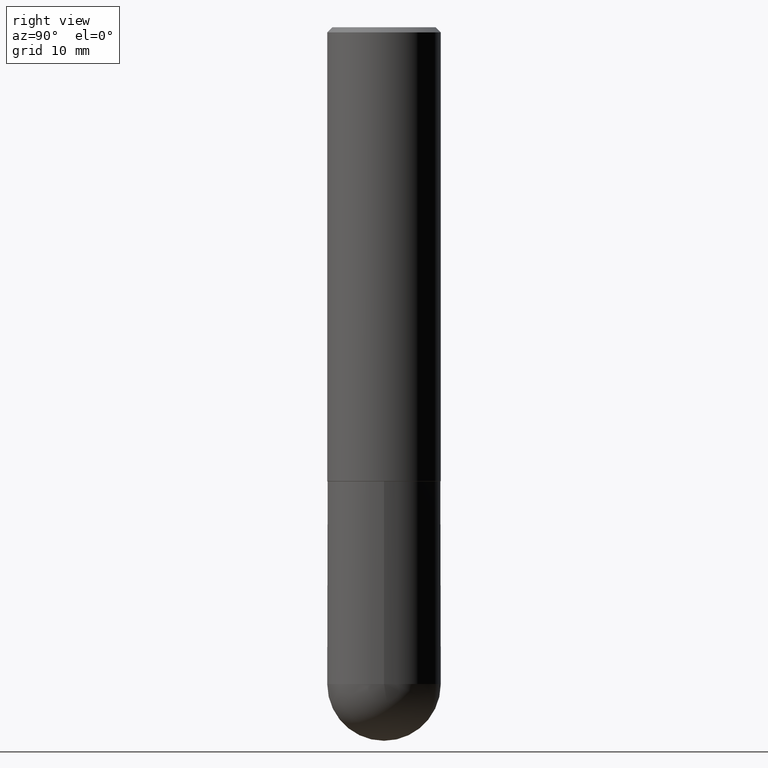
[diagram: clean part render]
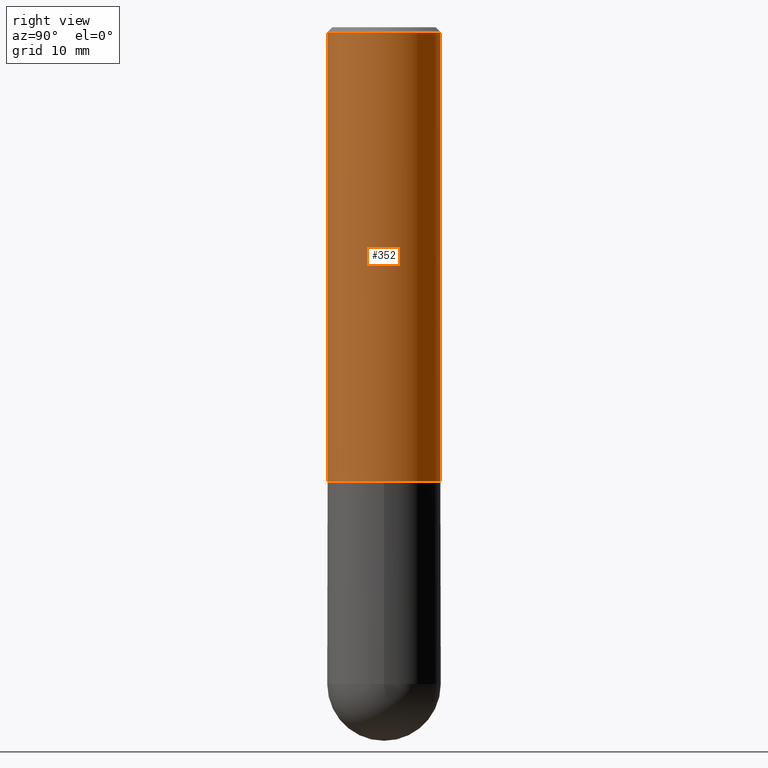
[diagram: same view with one face highlighted and labeled with its STEP entity id]
A machine part, right view. The second image highlights one B-rep face of the part: STEP entity #352.
In plain terms, the highlighted cylindrical surface (partial cylindrical patch) has radius 5.5563 mm, axis along (-0, 0, 1).
Its self-contained STEP definition (entity closure, byte-faithful):
#1 = DIRECTION ( 'NONE',  ( -6.982962677686265922E-15, -1.000000000000000000, 3.492862791899308860E-15 ) ) ;
#6 = CARTESIAN_POINT ( 'NONE',  ( 1.554312234475219551E-15, 0.2187500000000000833, -7.635532579436483302E-16 ) ) ;
#7 = CARTESIAN_POINT ( 'NONE',  ( 0.000000000000000000, 0.000000000000000000, 0.000000000000000000 ) ) ;
#10 = EDGE_CURVE ( 'NONE', #187, #123, #325, .T. ) ;
#21 = ORIENTED_EDGE ( 'NONE', *, *, #10, .T. ) ;
#28 = LINE ( 'NONE', #232, #289 ) ;
#31 = DIRECTION ( 'NONE',  ( -2.446133695730542157E-29, 3.490529179170962105E-15, 1.000000000000000000 ) ) ;
#39 = DIRECTION ( 'NONE',  ( -2.446133695730542437E-29, 3.490529179170962105E-15, 1.000000000000000000 ) ) ;
#45 = EDGE_CURVE ( 'NONE', #346, #123, #299, .T. ) ;
#62 = CARTESIAN_POINT ( 'NONE',  ( 4.278287833832718385E-29, -6.104935534370011908E-15, -1.748999999999999888 ) ) ;
#65 = DIRECTION ( 'NONE',  ( -2.446133695730542437E-29, 3.490529179170962105E-15, 1.000000000000000000 ) ) ;
#83 = EDGE_LOOP ( 'NONE', ( #91, #21, #353, #272 ) ) ;
#91 = ORIENTED_EDGE ( 'NONE', *, *, #385, .T. ) ;
#110 = AXIS2_PLACEMENT_3D ( 'NONE', #7, #31, #255 ) ;
#123 = VERTEX_POINT ( 'NONE', #220 ) ;
#124 = AXIS2_PLACEMENT_3D ( 'NONE', #403, #129, #1 ) ;
#129 = DIRECTION ( 'NONE',  ( -2.446133695730542157E-29, 3.490529179170962105E-15, 1.000000000000000000 ) ) ;
#133 = CARTESIAN_POINT ( 'NONE',  ( -1.500733937012521346E-15, -0.2187500000000000278, -0.01999999999999928571 ) ) ;
#160 = FACE_OUTER_BOUND ( 'NONE', #83, .T. ) ;
#176 = VECTOR ( 'NONE', #39, 39.37007874015748143 ) ;
#187 = VERTEX_POINT ( 'NONE', #351 ) ;
#188 = DIRECTION ( 'NONE',  ( -2.446133695730542157E-29, 3.490529179170962105E-15, 1.000000000000000000 ) ) ;
#197 = CYLINDRICAL_SURFACE ( 'NONE', #110, 0.2187500000000000833 ) ;
#208 = EDGE_CURVE ( 'NONE', #361, #346, #28, .T. ) ;
#220 = CARTESIAN_POINT ( 'NONE',  ( 1.527523085743870843E-15, 0.2187499999999998890, -0.02000000000000081574 ) ) ;
#232 = CARTESIAN_POINT ( 'NONE',  ( -1.527523085743871237E-15, -0.2187500000000000833, 7.635532579436483302E-16 ) ) ;
#255 = DIRECTION ( 'NONE',  ( -6.982962677686265922E-15, -1.000000000000000000, 3.490529179170962499E-15 ) ) ;
#272 = ORIENTED_EDGE ( 'NONE', *, *, #208, .F. ) ;
#289 = VECTOR ( 'NONE', #65, 39.37007874015748143 ) ;
#299 = CIRCLE ( 'NONE', #124, 0.2187499999999999445 ) ;
#312 = DIRECTION ( 'NONE',  ( -6.982962677686265922E-15, -1.000000000000000000, 3.746534391310985612E-15 ) ) ;
#315 = CIRCLE ( 'NONE', #359, 0.2187500000000002220 ) ;
#323 = CARTESIAN_POINT ( 'NONE',  ( -1.527523085743829428E-15, -0.2187500000000063283, -1.748999999999999000 ) ) ;
#325 = LINE ( 'NONE', #6, #176 ) ;
#346 = VERTEX_POINT ( 'NONE', #133 ) ;
#351 = CARTESIAN_POINT ( 'NONE',  ( 1.554312234475241442E-15, 0.2187499999999940881, -1.749000000000000554 ) ) ;
#352 = ADVANCED_FACE ( 'NONE', ( #160 ), #197, .T. ) ;
#353 = ORIENTED_EDGE ( 'NONE', *, *, #45, .F. ) ;
#359 = AXIS2_PLACEMENT_3D ( 'NONE', #62, #188, #312 ) ;
#361 = VERTEX_POINT ( 'NONE', #323 ) ;
#385 = EDGE_CURVE ( 'NONE', #361, #187, #315, .T. ) ;
#403 = CARTESIAN_POINT ( 'NONE',  ( 4.892267391461096505E-31, -6.981058358341942304E-17, -0.02000000000000005246 ) ) ;